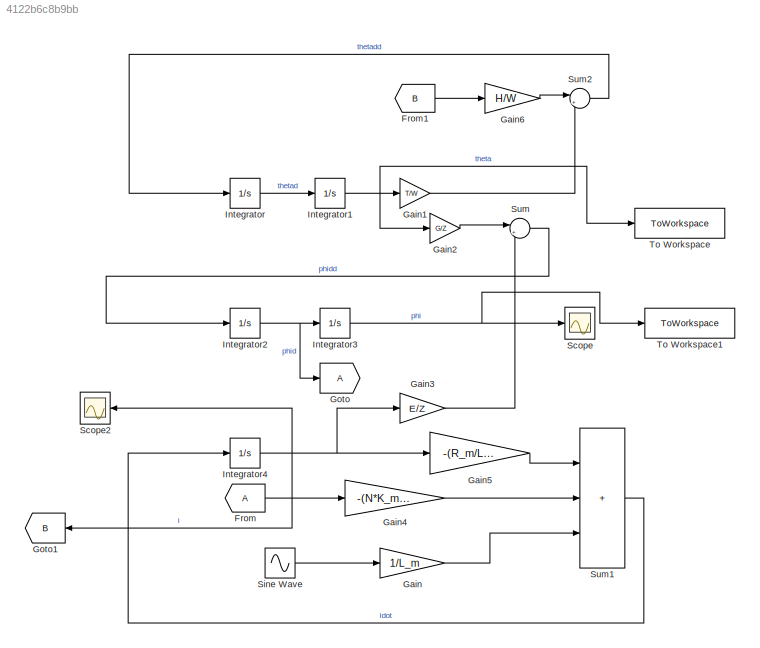
MODEL slx_4122b6c8b9bb
KIND model
CONFIG AbsTol = auto
CONFIG EnableMultiTasking = off
CONFIG FixedStep = auto
CONFIG MaxStep = auto
CONFIG MinStep = auto
CONFIG RelTol = 1e-3
CONFIG SampleTimeConstraint = Unconstrained
CONFIG SolverName = VariableStepAuto
CONFIG StartTime = 0.0
CONFIG StopTime = 30
BLOCK [From] From
BLOCK [From] From1
  GotoTag = B
BLOCK [Gain] Gain
  Gain = 1/L_m
BLOCK [Gain] Gain1
  Gain = T/W
BLOCK [Gain] Gain2
  Gain = G/Z
BLOCK [Gain] Gain3
  Gain = E/Z
BLOCK [Gain] Gain4
  Gain = -(N*K_m)/L_m
BLOCK [Gain] Gain5
  Gain = -(R_m/L_m)
BLOCK [Gain] Gain6
  Gain = H/W
BLOCK [Goto] Goto
BLOCK [Goto] Goto1
  GotoTag = B
  NameLocation = top
BLOCK [Integrator] Integrator
  Ports = [1, 1]
BLOCK [Integrator] Integrator1
  Ports = [1, 1]
BLOCK [Integrator] Integrator2
  Ports = [1, 1]
BLOCK [Integrator] Integrator3
  Ports = [1, 1]
BLOCK [Integrator] Integrator4
  Ports = [1, 1]
BLOCK [Scope] Scope
  Floating = off
  NumInputPorts = 1
  Ports = [1]
  ScopeSpecificationString = Simulink.scopes.TimeScopeBlockCfg('CurrentConfiguration', extmgr.ConfigurationSet(extmgr.Configuration('Core','General UI',true),extmgr.Configuration('Core','Source UI',true),extmgr.Configuration('Sources','WiredSimulink',true),extmgr.Configuration('Visuals','Time Domain',true,'SerializedDisplays',{struct('MinYLimReal','-0.00371','MaxYLimReal','0.03337','YLabelReal','','MinYLimMag','0.00000','MaxY...<+1378ch>
BLOCK [Scope] Scope2
  Floating = off
  NameLocation = top
  NumInputPorts = 1
  Ports = [1]
  ScopeSpecificationString = Simulink.scopes.TimeScopeBlockCfg('CurrentConfiguration', extmgr.ConfigurationSet(extmgr.Configuration('Core','General UI',true),extmgr.Configuration('Core','Source UI',true),extmgr.Configuration('Sources','WiredSimulink',true,'DataLoggingVariableName','ScopeData2'),extmgr.Configuration('Visuals','Time Domain',true,'SerializedDisplays',{struct('MinYLimReal','-0.06077','MaxYLimReal','0.09374','YLab...<+1360ch>
BLOCK [Sin] Sine Wave
  Amplitude = 2
  Ports = [0, 1]
  SampleTime = 0
BLOCK [Sum] Sum
  Inputs = |++
  Ports = [2, 1]
BLOCK [Sum] Sum1
  IconShape = rectangular
  Inputs = +++
  Ports = [3, 1]
BLOCK [Sum] Sum2
  Inputs = |++
  Ports = [2, 1]
BLOCK [ToWorkspace] To Workspace
  FixptAsFi = on
  MaxDataPoints = inf
  Ports = [1]
  SampleTime = -1
  VariableName = tl
BLOCK [ToWorkspace] To Workspace1
  FixptAsFi = on
  MaxDataPoints = inf
  Ports = [1]
  SampleTime = -1
  VariableName = phil
LINE From1:1 -> Gain6:1
LINE From:1 -> Gain4:1
LINE Gain1:1 -> Sum2:2
LINE Gain2:1 -> Sum:1
LINE Gain3:1 -> Sum:2
LINE Gain4:1 -> Sum1:2
LINE Gain5:1 -> Sum1:1
LINE Gain6:1 -> Sum2:1
LINE Gain:1 -> Sum1:3
NET Integrator1:1 -> Gain1:1, Gain2:1, To Workspace:1
NET Integrator2:1 -> Goto:1, Integrator3:1
NET Integrator3:1 -> Scope:1, To Workspace1:1
NET Integrator4:1 -> Gain3:1, Gain5:1, Goto1:1, Scope2:1
LINE Integrator:1 -> Integrator1:1
LINE Sine Wave:1 -> Gain:1
LINE Sum1:1 -> Integrator4:1
LINE Sum2:1 -> Integrator:1
LINE Sum:1 -> Integrator2:1
note: NET lines group one-source signal fan-out (src -> all destinations, sorted); 1:1 wires keep LINE
